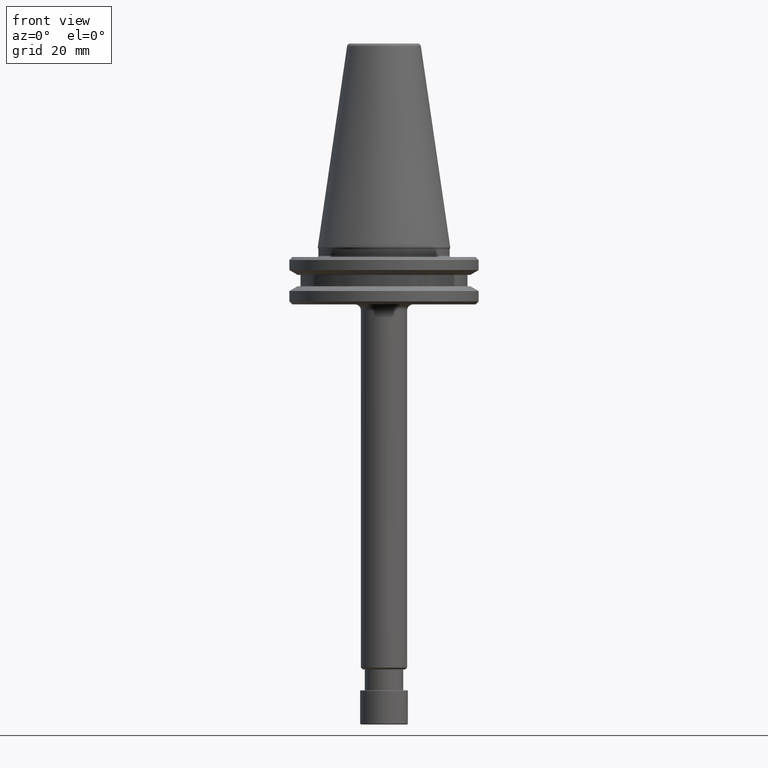
[diagram: clean part render]
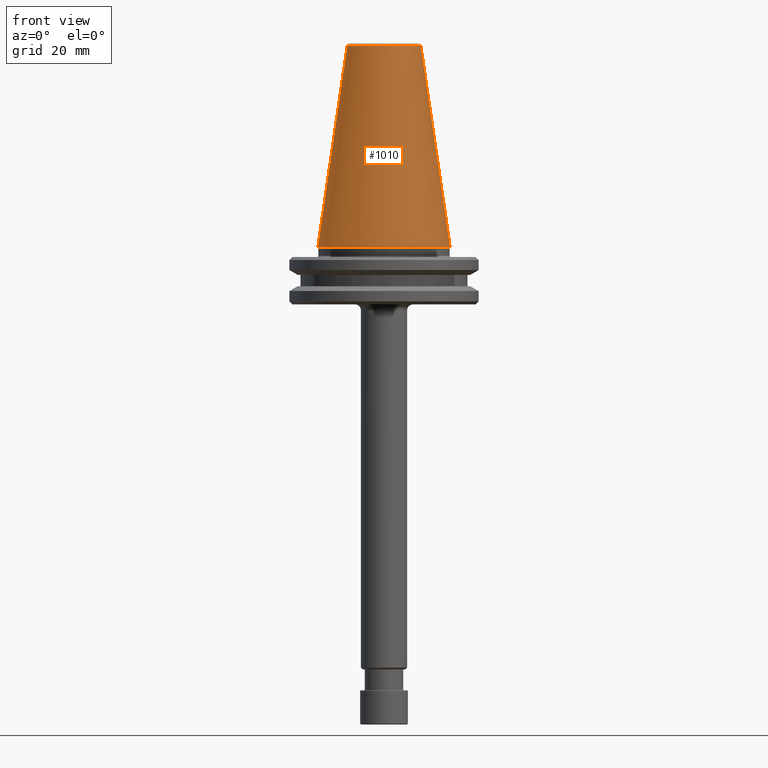
[diagram: same view with one face highlighted and labeled with its STEP entity id]
A machine part, front view. The second image highlights one B-rep face of the part: STEP entity #1010.
In plain terms, the highlighted conical surface has half-angle 8.297 deg.
Its self-contained STEP definition (entity closure, byte-faithful):
#26 = CIRCLE ( 'NONE', #1090, 12.37469540292124400 ) ;
#38 = CARTESIAN_POINT ( 'NONE',  ( -12.37469540292124400, 0.0000000000000000000, 160.9443082268833200 ) ) ;
#71 = CARTESIAN_POINT ( 'NONE',  ( 22.22499999999949700, 0.0000000000000000000, 93.39999999999976400 ) ) ;
#92 = LINE ( 'NONE', #134, #750 ) ;
#118 = EDGE_CURVE ( 'NONE', #287, #1260, #26, .T. ) ;
#124 = CIRCLE ( 'NONE', #840, 22.22499999999949700 ) ;
#134 = CARTESIAN_POINT ( 'NONE',  ( 22.22499999999949700, 2.721777511104930900E-015, 93.39999999999976400 ) ) ;
#146 = EDGE_CURVE ( 'NONE', #1260, #167, #92, .T. ) ;
#167 = VERTEX_POINT ( 'NONE', #71 ) ;
#198 = ORIENTED_EDGE ( 'NONE', *, *, #146, .F. ) ;
#205 = CARTESIAN_POINT ( 'NONE',  ( 0.0000000000000000000, 0.0000000000000000000, 93.39999999999976400 ) ) ;
#220 = EDGE_CURVE ( 'NONE', #287, #381, #793, .T. ) ;
#226 = AXIS2_PLACEMENT_3D ( 'NONE', #205, #522, #293 ) ;
#269 = CARTESIAN_POINT ( 'NONE',  ( -22.22499999999949700, 2.721777511104930900E-015, 93.39999999999976400 ) ) ;
#287 = VERTEX_POINT ( 'NONE', #38 ) ;
#293 = DIRECTION ( 'NONE',  ( -1.000000000000000000, 0.0000000000000000000, 0.0000000000000000000 ) ) ;
#333 = DIRECTION ( 'NONE',  ( 1.000000000000000000, 0.0000000000000000000, 0.0000000000000000000 ) ) ;
#381 = VERTEX_POINT ( 'NONE', #269 ) ;
#382 = ORIENTED_EDGE ( 'NONE', *, *, #118, .F. ) ;
#515 = FACE_OUTER_BOUND ( 'NONE', #536, .T. ) ;
#522 = DIRECTION ( 'NONE',  ( 0.0000000000000000000, 0.0000000000000000000, -1.000000000000000000 ) ) ;
#527 = DIRECTION ( 'NONE',  ( -0.0000000000000000000, -0.0000000000000000000, 1.000000000000000000 ) ) ;
#536 = EDGE_LOOP ( 'NONE', ( #198, #382, #672, #1107 ) ) ;
#567 = VECTOR ( 'NONE', #917, 1000.000000000000100 ) ;
#573 = CARTESIAN_POINT ( 'NONE',  ( 12.37469540292124400, 2.118620311333013700E-015, 160.9443082268833200 ) ) ;
#672 = ORIENTED_EDGE ( 'NONE', *, *, #220, .T. ) ;
#750 = VECTOR ( 'NONE', #1236, 1000.000000000000100 ) ;
#767 = DIRECTION ( 'NONE',  ( 1.000000000000000000, 0.0000000000000000000, 0.0000000000000000000 ) ) ;
#793 = LINE ( 'NONE', #829, #567 ) ;
#829 = CARTESIAN_POINT ( 'NONE',  ( -22.22499999999949700, 0.0000000000000000000, 93.39999999999976400 ) ) ;
#840 = AXIS2_PLACEMENT_3D ( 'NONE', #881, #1192, #333 ) ;
#842 = EDGE_CURVE ( 'NONE', #381, #167, #124, .T. ) ;
#881 = CARTESIAN_POINT ( 'NONE',  ( 0.0000000000000000000, 0.0000000000000000000, 93.39999999999976400 ) ) ;
#917 = DIRECTION ( 'NONE',  ( -0.1443082268835100500, 0.0000000000000000000, -0.9895327865481452500 ) ) ;
#1010 = ADVANCED_FACE ( 'NONE', ( #515 ), #1040, .T. ) ;
#1040 = CONICAL_SURFACE ( 'NONE', #226, 22.22499999999949700, 0.1448138461595623300 ) ;
#1090 = AXIS2_PLACEMENT_3D ( 'NONE', #1224, #527, #767 ) ;
#1107 = ORIENTED_EDGE ( 'NONE', *, *, #842, .T. ) ;
#1192 = DIRECTION ( 'NONE',  ( -0.0000000000000000000, -0.0000000000000000000, 1.000000000000000000 ) ) ;
#1224 = CARTESIAN_POINT ( 'NONE',  ( 0.0000000000000000000, 0.0000000000000000000, 160.9443082268833200 ) ) ;
#1236 = DIRECTION ( 'NONE',  ( 0.1443082268835100500, 1.767266081435205900E-017, -0.9895327865481452500 ) ) ;
#1260 = VERTEX_POINT ( 'NONE', #573 ) ;